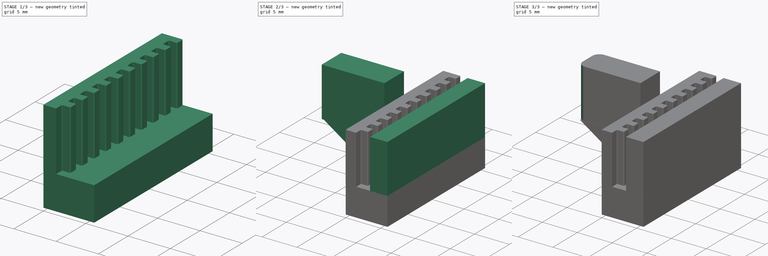
[diagram: build sequence overview — one tinted view per stage of 3, left to right]
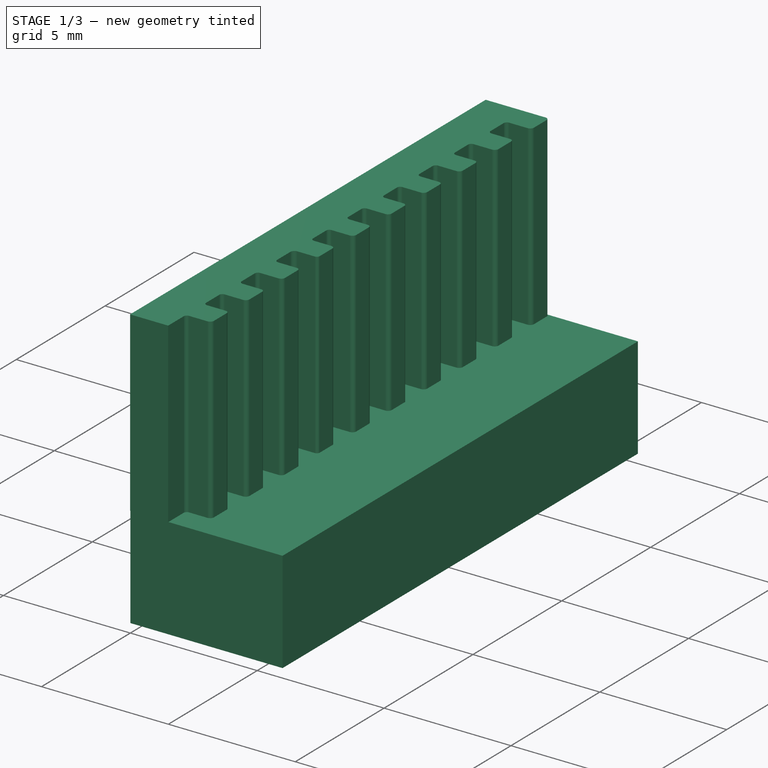
[diagram: stage 1 of 3 — iso view after this stage's code; geometry added in this stage tinted green]
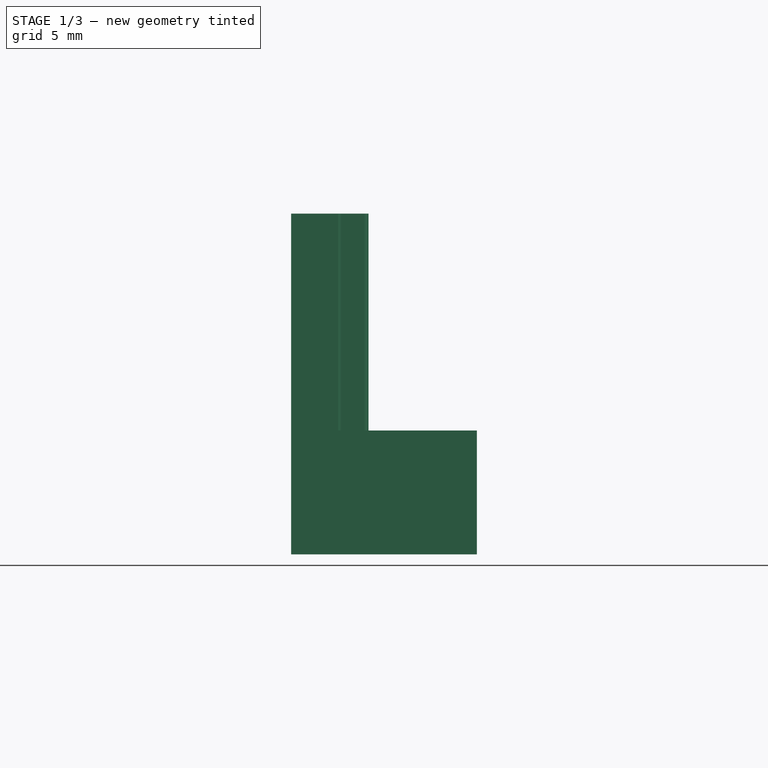
[diagram: stage 1 of 3 — front view after this stage's code; geometry added in this stage tinted green]
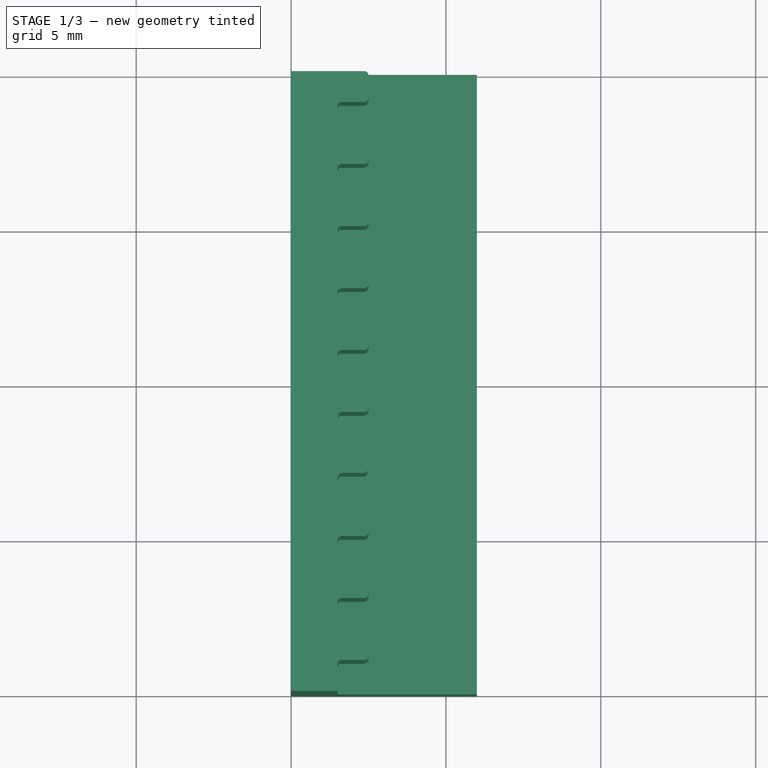
[diagram: stage 1 of 3 — top view after this stage's code; geometry added in this stage tinted green]
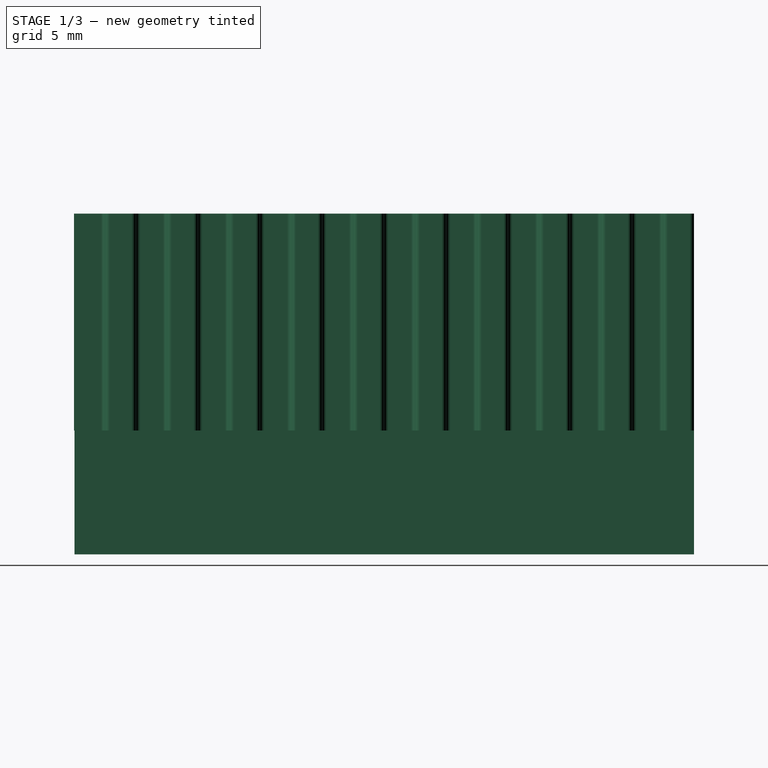
[diagram: stage 1 of 3 — right view after this stage's code; geometry added in this stage tinted green]
FCSTD DOCUMENT  (FreeCAD 0.21R33771 (Git))
Label: universal_stopper
License: All rights reserved
LicenseURL: http://en.wikipedia.org/wiki/All_rights_reserved
objects: Sketcher::SketchObject×5, PartDesign::Pad×5, PartDesign::Fillet×2, PartDesign::Body×1
note: 20 computed .brp shape members not serialized (recipe doc carries the construction recipe); baked Part::Feature solids carry a one-line shape summary decoded from their .brp

FEATURE [Sketcher::SketchObject] Sketch  label="base"
  FullyConstrained = true
  MapMode = 5
  Support = -> [XY_Plane]
  sketch-geometry (4):
    g0: LineSegment StartX=0 StartY=0 StartZ=0 EndX=6 EndY=0 EndZ=0
    g1: LineSegment StartX=6 StartY=0 StartZ=0 EndX=6 EndY=-20 EndZ=0
    g2: LineSegment StartX=6 StartY=-20 StartZ=0 EndX=0 EndY=-20 EndZ=0
    g3: LineSegment StartX=0 StartY=-20 StartZ=0 EndX=0 EndY=0 EndZ=0
  constraints (11):
    c: Coincident(g0,g1)
    c: Coincident(g1,g2)
    c: Coincident(g2,g3)
    c: Coincident(g3,g0)
    c: Horizontal(g0)
    c: Horizontal(g2)
    c: Vertical(g1)
    c: Vertical(g3)
    c: Coincident(g0,g-1)
    c: Distance(g3) = 20
    c: Distance(g0) = 6
FEATURE [PartDesign::Pad] Pad
  Direction = (0,0,1)
  Length = 4
  Length2 = 10
  Profile = -> Sketch
  ReferenceAxis = -> Sketch [N_Axis]
  Type = 0
FEATURE [Sketcher::SketchObject] Sketch001  label="zubia"
  FullyConstrained = false
  MapMode = 5
  Placement = pos=(0,0,4) rot=(0,0,1;0rad)
  Support = -> [Pad]
  sketch-geometry (91):
    g0: LineSegment StartX=0 StartY=0 StartZ=0 EndX=2.35958 EndY=-1.36913e-07 EndZ=0
    g1: LineSegment StartX=2.5 StartY=-0.14042 StartZ=0 EndX=2.5 EndY=-0.850163 EndZ=0
    g2: LineSegment StartX=2.35016 StartY=-0.999998 StartZ=0 EndX=1.62463 EndY=-0.999998 EndZ=0
    g3: LineSegment StartX=1.49999 StartY=-1.12463 StartZ=0 EndX=1.49999 EndY=-1.85853 EndZ=0
    g4: ArcOfCircle CenterX=2.35958 CenterY=-0.14042 CenterZ=0 NormalX=0 NormalY=0 NormalZ=1 AngleXU=0 Radius=0.14042 StartAngle=0 EndAngle=1.5708
    g5: ArcOfCircle CenterX=2.35016 CenterY=-0.850163 CenterZ=0 NormalX=0 NormalY=0 NormalZ=1 AngleXU=0 Radius=0.149835 StartAngle=4.71239 EndAngle=6.28319
    g6: ArcOfCircle CenterX=1.62463 CenterY=-1.12463 CenterZ=0 NormalX=0 NormalY=0 NormalZ=1 AngleXU=0 Radius=0.124633 StartAngle=1.5708 EndAngle=3.14159
    g7: ArcOfCircle CenterX=1.64149 CenterY=-1.85853 CenterZ=0 NormalX=0 NormalY=0 NormalZ=1 AngleXU=0 Radius=0.141491 StartAngle=3.14159 EndAngle=4.71239
    g8: LineSegment StartX=2.5 StartY=-2.1404 StartZ=0 EndX=2.5 EndY=-2.85165 EndZ=0
    g9: LineSegment StartX=2.35036 StartY=-3.00129 StartZ=0 EndX=1.62393 EndY=-3.00129 EndZ=0
    g10: LineSegment StartX=1.49851 StartY=-3.12672 StartZ=0 EndX=1.49851 EndY=-3.86339 EndZ=0
    g11: LineSegment StartX=1.64317 StartY=-4.00805 StartZ=0 EndX=2.36444 EndY=-4.00805 EndZ=0
    g12: ArcOfCircle CenterX=2.35963 CenterY=-2.1404 CenterZ=0 NormalX=0 NormalY=0 NormalZ=1 AngleXU=0 Radius=0.14037 StartAngle=0 EndAngle=1.57079
    g13: ArcOfCircle CenterX=2.35036 CenterY=-2.85165 CenterZ=0 NormalX=0 NormalY=0 NormalZ=1 AngleXU=0 Radius=0.149637 StartAngle=4.71239 EndAngle=6.28319
    g14: ArcOfCircle CenterX=1.62393 CenterY=-3.12672 CenterZ=0 NormalX=0 NormalY=0 NormalZ=1 AngleXU=0 Radius=0.125425 StartAngle=1.5708 EndAngle=3.14159
    g15: ArcOfCircle CenterX=1.64317 CenterY=-3.86339 CenterZ=0 NormalX=0 NormalY=0 NormalZ=1 AngleXU=0 Radius=0.14466 StartAngle=3.14159 EndAngle=4.71239
    g16: LineSegment StartX=0 StartY=0 StartZ=0 EndX=0.0001 EndY=-2.00169 EndZ=0
    g17: LineSegment StartX=2.50018 StartY=-4.14379 StartZ=0 EndX=2.50018 EndY=-4.85351 EndZ=0
    g18: LineSegment StartX=2.35038 StartY=-5.00331 StartZ=0 EndX=1.6247 EndY=-5.00331 EndZ=0
    g19: LineSegment StartX=1.49994 StartY=-5.12807 StartZ=0 EndX=1.49994 EndY=-5.86306 EndZ=0
    g20: LineSegment StartX=1.64194 StartY=-6.00506 StartZ=0 EndX=2.35989 EndY=-6.00506 EndZ=0
    g21: ArcOfCircle CenterX=2.36444 CenterY=-4.14379 CenterZ=0 NormalX=0 NormalY=0 NormalZ=1 AngleXU=0 Radius=0.135743 StartAngle=-1.8e-15 EndAngle=1.5708
    g22: ArcOfCircle CenterX=2.35038 CenterY=-4.85351 CenterZ=0 NormalX=0 NormalY=0 NormalZ=1 AngleXU=0 Radius=0.149804 StartAngle=4.71239 EndAngle=6.28319
    g23: ArcOfCircle CenterX=1.6247 CenterY=-5.12807 CenterZ=0 NormalX=0 NormalY=0 NormalZ=1 AngleXU=0 Radius=0.12476 StartAngle=1.5708 EndAngle=3.14159
    g24: ArcOfCircle CenterX=1.64194 CenterY=-5.86306 CenterZ=0 NormalX=0 NormalY=0 NormalZ=1 AngleXU=0 Radius=0.141999 StartAngle=3.14159 EndAngle=4.71239
    g25: LineSegment StartX=0.0001 StartY=-2.00169 StartZ=0 EndX=0.0002 EndY=-4.00338 EndZ=0
    g26: LineSegment StartX=2.50033 StartY=-6.14549 StartZ=0 EndX=2.50033 EndY=-6.85529 EndZ=0
    g27: LineSegment StartX=2.35043 StartY=-7.00518 StartZ=0 EndX=1.62517 EndY=-7.00518 EndZ=0
    g28: LineSegment StartX=1.50078 StartY=-7.12957 StartZ=0 EndX=1.50078 EndY=-7.86262 EndZ=0
    g29: LineSegment StartX=1.6413 StartY=-8.00314 StartZ=0 EndX=2.35632 EndY=-8.00314 EndZ=0
    g30: ArcOfCircle CenterX=2.3599 CenterY=-6.14549 CenterZ=0 NormalX=0 NormalY=0 NormalZ=1 AngleXU=0 Radius=0.140435 StartAngle=-1.8e-15 EndAngle=1.5708
    g31: ArcOfCircle CenterX=2.35043 CenterY=-6.85529 CenterZ=0 NormalX=0 NormalY=0 NormalZ=1 AngleXU=0 Radius=0.149896 StartAngle=4.71239 EndAngle=6.28319
    g32: ArcOfCircle CenterX=1.62517 CenterY=-7.12957 CenterZ=0 NormalX=0 NormalY=0 NormalZ=1 AngleXU=0 Radius=0.124389 StartAngle=1.5708 EndAngle=3.14159
    g33: ArcOfCircle CenterX=1.6413 CenterY=-7.86262 CenterZ=0 NormalX=0 NormalY=0 NormalZ=1 AngleXU=0 Radius=0.140515 StartAngle=3.14159 EndAngle=4.71239
    g34: LineSegment StartX=0.0002 StartY=-4.00338 StartZ=0 EndX=0.0003 EndY=-6.00506 EndZ=0
    g35: LineSegment StartX=2.50035 StartY=-8.14716 StartZ=0 EndX=2.50035 EndY=-8.85681 EndZ=0
    g36: LineSegment StartX=2.35062 StartY=-9.00654 StartZ=0 EndX=1.6246 EndY=-9.00654 EndZ=0
    g37: LineSegment StartX=1.49954 StartY=-9.1316 StartZ=0 EndX=1.49954 EndY=-9.86525 EndZ=0
    g38: LineSegment StartX=1.64274 StartY=-10.0085 StartZ=0 EndX=2.36005 EndY=-10.0085 EndZ=0
    g39: ArcOfCircle CenterX=2.35632 CenterY=-8.14716 CenterZ=0 NormalX=0 NormalY=0 NormalZ=1 AngleXU=0 Radius=0.144022 StartAngle=4.7e-15 EndAngle=1.57079
    g40: ArcOfCircle CenterX=2.35062 CenterY=-8.85681 CenterZ=0 NormalX=0 NormalY=0 NormalZ=1 AngleXU=0 Radius=0.149728 StartAngle=4.71239 EndAngle=6.28319
    g41: ArcOfCircle CenterX=1.6246 CenterY=-9.1316 CenterZ=0 NormalX=0 NormalY=0 NormalZ=1 AngleXU=0 Radius=0.125061 StartAngle=1.5708 EndAngle=3.14159
    g42: ArcOfCircle CenterX=1.64274 CenterY=-9.86525 CenterZ=0 NormalX=0 NormalY=0 NormalZ=1 AngleXU=0 Radius=0.143202 StartAngle=3.14159 EndAngle=4.71239
    g43: LineSegment StartX=0.0003 StartY=-6.00506 StartZ=0 EndX=0.0004 EndY=-8.00675 EndZ=0
    g44: LineSegment StartX=2.50044 StartY=-10.1488 StartZ=0 EndX=2.50044 EndY=-10.8585 EndZ=0
    g45: LineSegment StartX=2.35072 StartY=-11.0082 StartZ=0 EndX=1.63435 EndY=-11.0082 EndZ=0
    g46: LineSegment StartX=1.50927 StartY=-11.1333 StartZ=0 EndX=1.50927 EndY=-11.8685 EndZ=0
    g47: LineSegment StartX=1.64287 StartY=-12.0021 StartZ=0 EndX=2.31498 EndY=-12.0021 EndZ=0
    g48: ArcOfCircle CenterX=2.36005 CenterY=-10.1488 CenterZ=0 NormalX=0 NormalY=0 NormalZ=1 AngleXU=0 Radius=0.140392 StartAngle=5.1e-15 EndAngle=1.57079
    g49: ArcOfCircle CenterX=2.35072 CenterY=-10.8585 CenterZ=0 NormalX=0 NormalY=0 NormalZ=1 AngleXU=0 Radius=0.149725 StartAngle=4.71239 EndAngle=6.28319
    g50: ArcOfCircle CenterX=1.63435 CenterY=-11.1333 CenterZ=0 NormalX=0 NormalY=0 NormalZ=1 AngleXU=0 Radius=0.125075 StartAngle=1.5708 EndAngle=3.14159
    g51: ArcOfCircle CenterX=1.64287 CenterY=-11.8685 CenterZ=0 NormalX=0 NormalY=0 NormalZ=1 AngleXU=0 Radius=0.133595 StartAngle=3.14159 EndAngle=4.71239
    g52: LineSegment StartX=0.0004 StartY=-8.00675 StartZ=0 EndX=0.0005 EndY=-10.0084 EndZ=0
    g53: LineSegment StartX=2.46352 StartY=-12.1505 StartZ=0 EndX=2.46352 EndY=-12.8601 EndZ=0
    g54: LineSegment StartX=2.35085 StartY=-12.9728 StartZ=0 EndX=1.66152 EndY=-12.9728 EndZ=0
    g55: LineSegment StartX=1.49919 StartY=-13.1351 StartZ=0 EndX=1.49919 EndY=-13.8715 EndZ=0
    g56: LineSegment StartX=1.64349 StartY=-14.0158 StartZ=0 EndX=2.36422 EndY=-14.0158 EndZ=0
    g57: ArcOfCircle CenterX=2.31511 CenterY=-12.1505 CenterZ=0 NormalX=0 NormalY=0 NormalZ=1 AngleXU=0 Radius=0.148411 StartAngle=4.9e-15 EndAngle=1.57165
    g58: ArcOfCircle CenterX=2.35085 CenterY=-12.8601 CenterZ=0 NormalX=0 NormalY=0 NormalZ=1 AngleXU=0 Radius=0.112668 StartAngle=4.71239 EndAngle=6.28319
    g59: ArcOfCircle CenterX=1.66152 CenterY=-13.1351 CenterZ=0 NormalX=0 NormalY=0 NormalZ=1 AngleXU=0 Radius=0.162328 StartAngle=1.5708 EndAngle=3.14159
    g60: ArcOfCircle CenterX=1.64349 CenterY=-13.8715 CenterZ=0 NormalX=0 NormalY=0 NormalZ=1 AngleXU=0 Radius=0.144301 StartAngle=3.14159 EndAngle=4.71239
    g61: LineSegment StartX=0.0005 StartY=-10.0084 StartZ=0 EndX=0.0006 EndY=-12.0101 EndZ=0
    g62: LineSegment StartX=2.50067 StartY=-14.1522 StartZ=0 EndX=2.50067 EndY=-14.8619 EndZ=0
    g63: LineSegment StartX=2.35089 StartY=-15.0117 StartZ=0 EndX=1.62512 EndY=-15.0117 EndZ=0
    g64: LineSegment StartX=1.50027 StartY=-15.1366 StartZ=0 EndX=1.50027 EndY=-15.8712 EndZ=0
    g65: LineSegment StartX=1.64259 StartY=-16.0135 StartZ=0 EndX=2.36081 EndY=-16.0135 EndZ=0
    g66: ArcOfCircle CenterX=2.36422 CenterY=-14.1522 CenterZ=0 NormalX=0 NormalY=0 NormalZ=1 AngleXU=0 Radius=0.136457 StartAngle=5.5e-15 EndAngle=1.57079
    g67: ArcOfCircle CenterX=2.35089 CenterY=-14.8619 CenterZ=0 NormalX=0 NormalY=0 NormalZ=1 AngleXU=0 Radius=0.149783 StartAngle=4.71239 EndAngle=6.28319
    g68: ArcOfCircle CenterX=1.62512 CenterY=-15.1366 CenterZ=0 NormalX=0 NormalY=0 NormalZ=1 AngleXU=0 Radius=0.124844 StartAngle=1.5708 EndAngle=3.14159
    g69: ArcOfCircle CenterX=1.64259 CenterY=-15.8712 CenterZ=0 NormalX=0 NormalY=0 NormalZ=1 AngleXU=0 Radius=0.142321 StartAngle=3.14159 EndAngle=4.71239
    g70: LineSegment StartX=0.0006 StartY=-12.0101 StartZ=0 EndX=0.0007 EndY=-14.0118 EndZ=0
    g71: LineSegment StartX=2.50122 StartY=-16.1539 StartZ=0 EndX=2.50122 EndY=-16.8636 EndZ=0
    g72: LineSegment StartX=2.351 StartY=-17.0138 StartZ=0 EndX=1.62516 EndY=-17.0138 EndZ=0
    g73: LineSegment StartX=1.50072 StartY=-17.1383 StartZ=0 EndX=1.50072 EndY=-17.8731 EndZ=0
    g74: LineSegment StartX=1.64281 StartY=-18.0152 StartZ=0 EndX=2.36048 EndY=-18.0152 EndZ=0
    g75: ArcOfCircle CenterX=2.36081 CenterY=-16.1539 CenterZ=0 NormalX=0 NormalY=0 NormalZ=1 AngleXU=0 Radius=0.140403 StartAngle=-7.1e-15 EndAngle=1.57079
    g76: ArcOfCircle CenterX=2.351 CenterY=-16.8636 CenterZ=0 NormalX=0 NormalY=0 NormalZ=1 AngleXU=0 Radius=0.150219 StartAngle=4.71239 EndAngle=6.28319
    g77: ArcOfCircle CenterX=1.62516 CenterY=-17.1383 CenterZ=0 NormalX=0 NormalY=0 NormalZ=1 AngleXU=0 Radius=0.124447 StartAngle=1.5708 EndAngle=3.14159
    g78: ArcOfCircle CenterX=1.64281 CenterY=-17.8731 CenterZ=0 NormalX=0 NormalY=0 NormalZ=1 AngleXU=0 Radius=0.142098 StartAngle=3.14159 EndAngle=4.71239
    g79: LineSegment StartX=0.0007 StartY=-14.0118 StartZ=0 EndX=0.0008 EndY=-16.0135 EndZ=0
    g80: LineSegment StartX=2.5009 StartY=-18.1556 StartZ=0 EndX=2.5009 EndY=-18.8654 EndZ=0
    g81: LineSegment StartX=2.35106 StartY=-19.0152 StartZ=0 EndX=1.62553 EndY=-19.0152 EndZ=0
    g82: LineSegment StartX=1.5009 StartY=-19.1398 StartZ=0 EndX=1.5009 EndY=-20.0134 EndZ=0
    g83: ArcOfCircle CenterX=2.36048 CenterY=-18.1556 CenterZ=0 NormalX=0 NormalY=0 NormalZ=1 AngleXU=0 Radius=0.14042 StartAngle=-7.1e-15 EndAngle=1.5708
    g84: ArcOfCircle CenterX=2.35106 CenterY=-18.8654 CenterZ=0 NormalX=0 NormalY=0 NormalZ=1 AngleXU=0 Radius=0.149836 StartAngle=4.71239 EndAngle=6.28319
    g85: ArcOfCircle CenterX=1.62553 CenterY=-19.1398 CenterZ=0 NormalX=0 NormalY=0 NormalZ=1 AngleXU=0 Radius=0.12463 StartAngle=1.5708 EndAngle=3.14159
    g86: LineSegment StartX=0.0008 StartY=-16.0135 StartZ=0 EndX=0.0009 EndY=-18.0152 EndZ=0
    g87: LineSegment StartX=-0.0001 StartY=-18.0117 StartZ=0 EndX=0 EndY=-20.0134 EndZ=0
    g88: LineSegment StartX=1.64149 StartY=-2.00002 StartZ=0 EndX=2.35963 EndY=-2.00002 EndZ=0
    g89: LineSegment StartX=0 StartY=-20.0134 StartZ=0 EndX=1.5009 EndY=-20.0134 EndZ=0
    g90: LineSegment StartX=0 StartY=-20.0134 StartZ=0 EndX=0 EndY=0 EndZ=0
  constraints (145):
    c: Coincident(g0,g-1)
    c: Vertical(g1)
    c: Horizontal(g2)
    c: Vertical(g3)
    c: Tangent(g0,g4) = 1.5708
    c: Tangent(g1,g4) = 1.5708
    c: Tangent(g1,g5) = 1.5708
    c: Tangent(g2,g5) = 1.5708
    c: Tangent(g3,g6) = -1.5708
    c: Tangent(g2,g6) = -1.5708
    c: Tangent(g3,g7) = -1.5708
    c: Vertical(g8)
    c: Horizontal(g9)
    c: Vertical(g10)
    c: Horizontal(g11)
    c: Tangent(g8,g12) = 1.5708
    c: Tangent(g8,g13) = 1.5708
    c: Tangent(g9,g13) = 1.5708
    c: Tangent(g10,g14) = -1.5708
    c: Tangent(g9,g14) = -1.5708
    c: Tangent(g10,g15) = -1.5708
    c: Tangent(g11,g15) = -1.5708
    c: Coincident(g0,g16)
    c: Distance(g16) = 2.00169
    c: Angle(g16) = -1.57075
    c: Vertical(g17)
    c: Horizontal(g18)
    c: Vertical(g19)
    c: Horizontal(g20)
    c: Tangent(g17,g21) = 1.5708
    c: Tangent(g17,g22) = 1.5708
    c: Tangent(g18,g22) = 1.5708
    c: Tangent(g19,g23) = -1.5708
    c: Tangent(g18,g23) = -1.5708
    c: Tangent(g19,g24) = -1.5708
    c: Tangent(g20,g24) = -1.5708
    c: Equal(g16,g25)
    c: Parallel(g25,g16)
    c: Vertical(g26)
    c: Horizontal(g27)
    c: Vertical(g28)
    c: Horizontal(g29)
    c: Tangent(g26,g30) = 1.5708
    c: Tangent(g26,g31) = 1.5708
    c: Tangent(g27,g31) = 1.5708
    c: Tangent(g28,g32) = -1.5708
    c: Tangent(g27,g32) = -1.5708
    c: Tangent(g28,g33) = -1.5708
    c: Tangent(g29,g33) = -1.5708
    c: Equal(g16,g34)
    c: Parallel(g34,g16)
    c: Vertical(g35)
    c: Horizontal(g36)
    c: Vertical(g37)
    c: Horizontal(g38)
    c: Tangent(g35,g39) = 1.5708
    c: Tangent(g35,g40) = 1.5708
    c: Tangent(g36,g40) = 1.5708
    c: Tangent(g37,g41) = -1.5708
    c: Tangent(g36,g41) = -1.5708
    c: Tangent(g37,g42) = -1.5708
    c: Tangent(g38,g42) = -1.5708
    c: Equal(g16,g43)
    c: Parallel(g43,g16)
    c: Vertical(g44)
    c: Horizontal(g45)
    c: Vertical(g46)
    c: Horizontal(g47)
    c: Tangent(g44,g48) = 1.5708
    c: Tangent(g44,g49) = 1.5708
    c: Tangent(g45,g49) = 1.5708
    c: Tangent(g46,g50) = -1.5708
    c: Tangent(g45,g50) = -1.5708
    c: Tangent(g46,g51) = -1.5708
    c: Tangent(g47,g51) = -1.5708
    c: Equal(g16,g52)
    c: Parallel(g52,g16)
    c: Vertical(g53)
    c: Horizontal(g54)
    c: Vertical(g55)
    c: Horizontal(g56)
    c: Tangent(g53,g57) = 1.5708
    c: Tangent(g53,g58) = 1.5708
    c: Tangent(g54,g58) = 1.5708
    c: Tangent(g55,g59) = -1.5708
    c: Tangent(g54,g59) = -1.5708
    c: Tangent(g55,g60) = -1.5708
    c: Tangent(g56,g60) = -1.5708
    c: Equal(g16,g61)
    c: Parallel(g61,g16)
    c: Vertical(g62)
    c: Horizontal(g63)
    c: Vertical(g64)
    c: Horizontal(g65)
    c: Tangent(g62,g66) = 1.5708
    c: Tangent(g62,g67) = 1.5708
    c: Tangent(g63,g67) = 1.5708
    c: Tangent(g64,g68) = -1.5708
    c: Tangent(g63,g68) = -1.5708
    c: Tangent(g64,g69) = -1.5708
    c: Tangent(g65,g69) = -1.5708
    c: Equal(g16,g70)
    c: Parallel(g70,g16)
    c: Vertical(g71)
    c: Horizontal(g72)
    c: Vertical(g73)
    c: Horizontal(g74)
    c: Tangent(g71,g75) = 1.5708
    c: Tangent(g71,g76) = 1.5708
    c: Tangent(g72,g76) = 1.5708
    c: Tangent(g73,g77) = -1.5708
    c: Tangent(g72,g77) = -1.5708
    c: Tangent(g73,g78) = -1.5708
    c: Tangent(g74,g78) = -1.5708
    c: Equal(g16,g79)
    c: Parallel(g79,g16)
    c: Vertical(g80)
    c: Horizontal(g81)
    c: Vertical(g82)
    c: Tangent(g80,g83) = 1.5708
    c: Tangent(g80,g84) = 1.5708
    c: Tangent(g81,g84) = 1.5708
    c: Tangent(g82,g85) = -1.5708
    c: Tangent(g81,g85) = -1.5708
    c: Equal(g16,g86)
    c: Parallel(g86,g16)
    c: Equal(g16,g87)
    c: Parallel(g87,g16)
    c: Coincident(g88,g7)
    c: Coincident(g88,g12)
    c: Horizontal(g88)
    c: Coincident(g21,g11)
    c: Coincident(g30,g20)
    c: Coincident(g39,g29)
    c: Coincident(g48,g38)
    c: Coincident(g57,g47)
    c: Coincident(g66,g56)
    c: Coincident(g75,g65)
    c: Coincident(g83,g74)
    c: Coincident(g89,g87)
    c: Horizontal(g89)
    c: Coincident(g89,g82)
    c: Coincident(g90,g89)
    c: Coincident(g90,g0)
    c: Vertical(g90)
FEATURE [PartDesign::Pad] Pad001  label="zubia_push"
  BaseFeature = -> Pad
  Direction = (0,0,1)
  Length = 7
  Length2 = 10
  Profile = -> Sketch001
  ReferenceAxis = -> Sketch001 [N_Axis]
  Type = 0
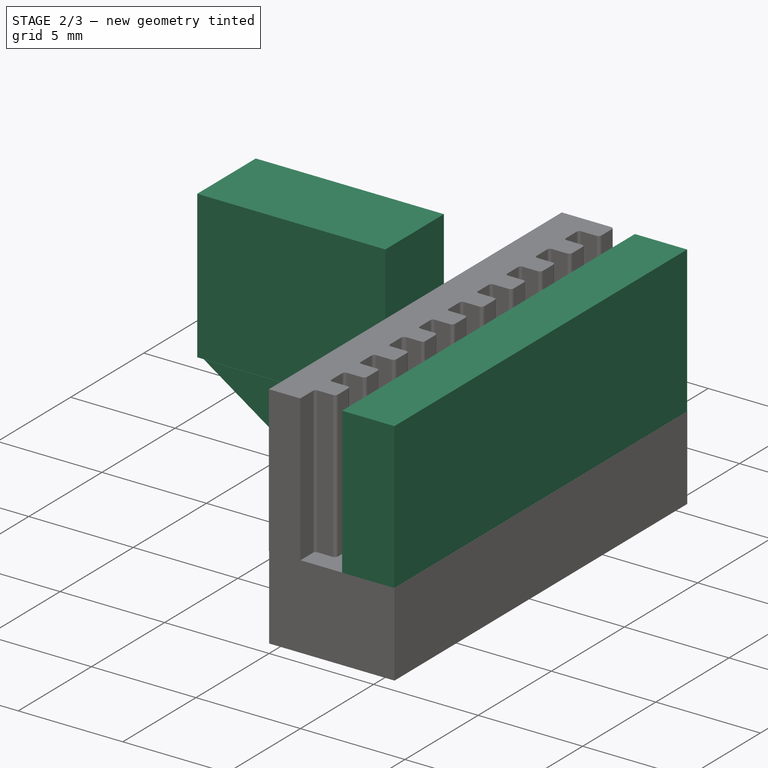
[diagram: stage 2 of 3 — iso view after this stage's code; geometry added in this stage tinted green]
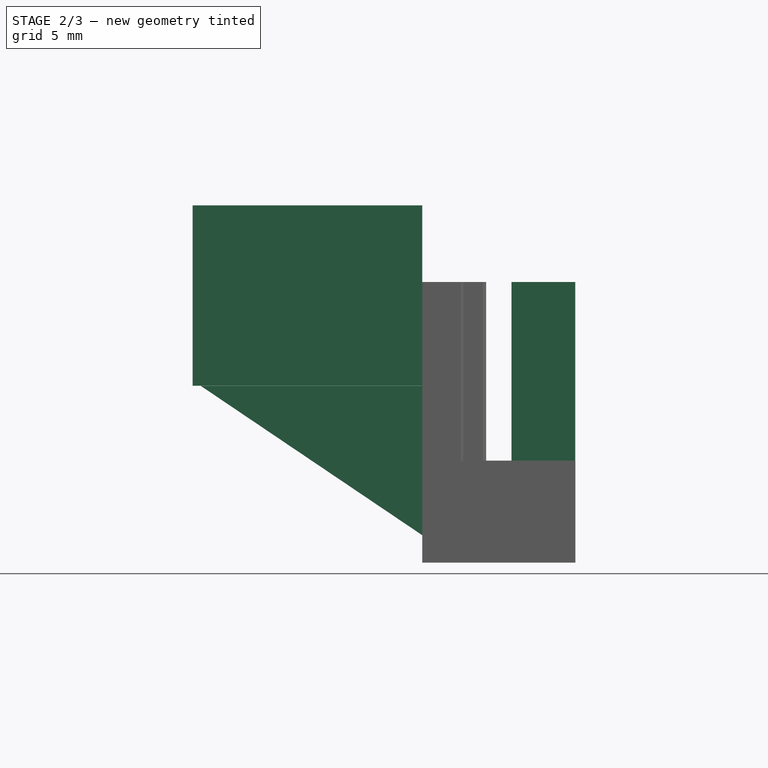
[diagram: stage 2 of 3 — front view after this stage's code; geometry added in this stage tinted green]
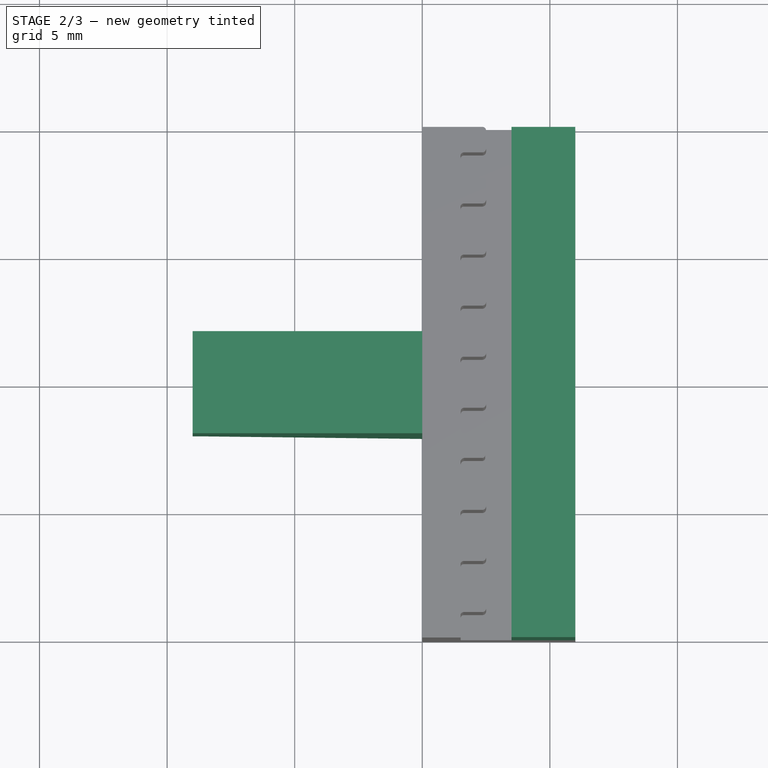
[diagram: stage 2 of 3 — top view after this stage's code; geometry added in this stage tinted green]
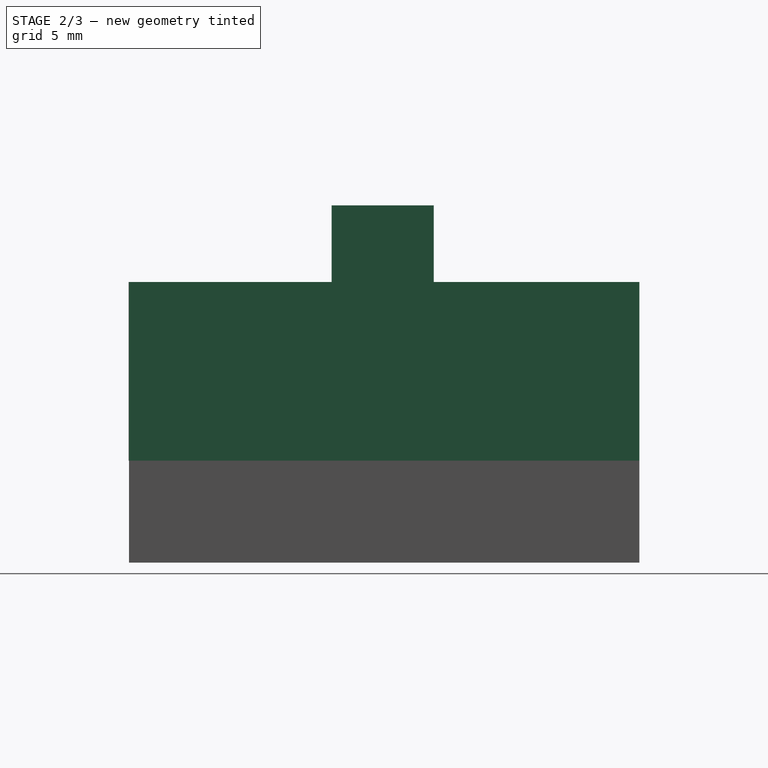
[diagram: stage 2 of 3 — right view after this stage's code; geometry added in this stage tinted green]
FEATURE [Sketcher::SketchObject] Sketch002  label="peregorodka"
  FullyConstrained = false
  MapMode = 5
  Placement = pos=(0,0,4) rot=(0,0,1;0rad)
  Support = -> [Pad001]
  sketch-geometry (4):
    g0: LineSegment StartX=5.99459 StartY=0 StartZ=0 EndX=3.49459 EndY=0 EndZ=0
    g1: LineSegment StartX=3.49459 StartY=0 StartZ=0 EndX=3.49459 EndY=-20 EndZ=0
    g2: LineSegment StartX=3.49459 StartY=-20 StartZ=0 EndX=5.99459 EndY=-20 EndZ=0
    g3: LineSegment StartX=5.99459 StartY=-20 StartZ=0 EndX=5.99459 EndY=0 EndZ=0
  constraints (11):
    c: Coincident(g0,g1)
    c: Coincident(g1,g2)
    c: Coincident(g2,g3)
    c: Coincident(g3,g0)
    c: Horizontal(g0)
    c: Horizontal(g2)
    c: Vertical(g1)
    c: Vertical(g3)
    c: PointOnObject(g0,g-1)
    c: Distance(g0) = 2.5
    c: Distance(g1) = 20
FEATURE [PartDesign::Pad] Pad002
  BaseFeature = -> Pad001
  Direction = (0,0,1)
  Length = 7
  Length2 = 10
  Profile = -> Sketch002
  ReferenceAxis = -> Sketch002 [N_Axis]
  Type = 0
FEATURE [Sketcher::SketchObject] Sketch003  label="pipe"
  FullyConstrained = false
  MapMode = 5
  Placement = pos=(0,0,0) rot=(0.57735,-0.57735,-0.57735;2.0944rad)
  Support = -> [Pad002]
  sketch-geometry (4):
    g0: LineSegment StartX=8.05724 StartY=14.0032 StartZ=0 EndX=12.0572 EndY=14.0032 EndZ=0
    g1: LineSegment StartX=12.0572 StartY=14.0032 StartZ=0 EndX=12.0572 EndY=6.93519 EndZ=0
    g2: LineSegment StartX=12.0572 StartY=6.93519 StartZ=0 EndX=8.05724 EndY=6.93519 EndZ=0
    g3: LineSegment StartX=8.05724 StartY=6.93519 StartZ=0 EndX=8.05724 EndY=14.0032 EndZ=0
  constraints (9):
    c: Coincident(g0,g1)
    c: Coincident(g1,g2)
    c: Coincident(g2,g3)
    c: Coincident(g3,g0)
    c: Horizontal(g0)
    c: Horizontal(g2)
    c: Vertical(g1)
    c: Vertical(g3)
    c: Distance(g2) = 4
FEATURE [PartDesign::Pad] Pad003
  BaseFeature = -> Pad002
  Direction = (-1,0,0)
  Length = 9
  Length2 = 10
  Profile = -> Sketch003
  ReferenceAxis = -> Sketch003 [N_Axis]
  Type = 0
FEATURE [Sketcher::SketchObject] Sketch004  label="podporka"
  FullyConstrained = false
  MapMode = 5
  Placement = pos=(0,-8.05724,0) rot=(0,0.707107,0.707107;3.14159rad)
  Support = -> [Pad003]
  sketch-geometry (3):
    g0: LineSegment StartX=8.67976 StartY=6.92718 StartZ=0 EndX=0 EndY=1.07531 EndZ=0
    g1: LineSegment StartX=0 StartY=1.07531 StartZ=0 EndX=0 EndY=6.92718 EndZ=0
    g2: LineSegment StartX=0 StartY=6.92718 StartZ=0 EndX=8.67976 EndY=6.92718 EndZ=0
  constraints (6):
    c: PointOnObject(g0,g-2)
    c: Coincident(g1,g0)
    c: Vertical(g1)
    c: Coincident(g2,g1)
    c: Coincident(g2,g0)
    c: Horizontal(g2)
FEATURE [PartDesign::Pad] Pad004
  BaseFeature = -> Pad003
  Direction = (0,1,-2e-16)
  Length = 4
  Length2 = 10
  Profile = -> Sketch004
  ReferenceAxis = -> Sketch004 [N_Axis]
  Reversed = true
  Type = 0
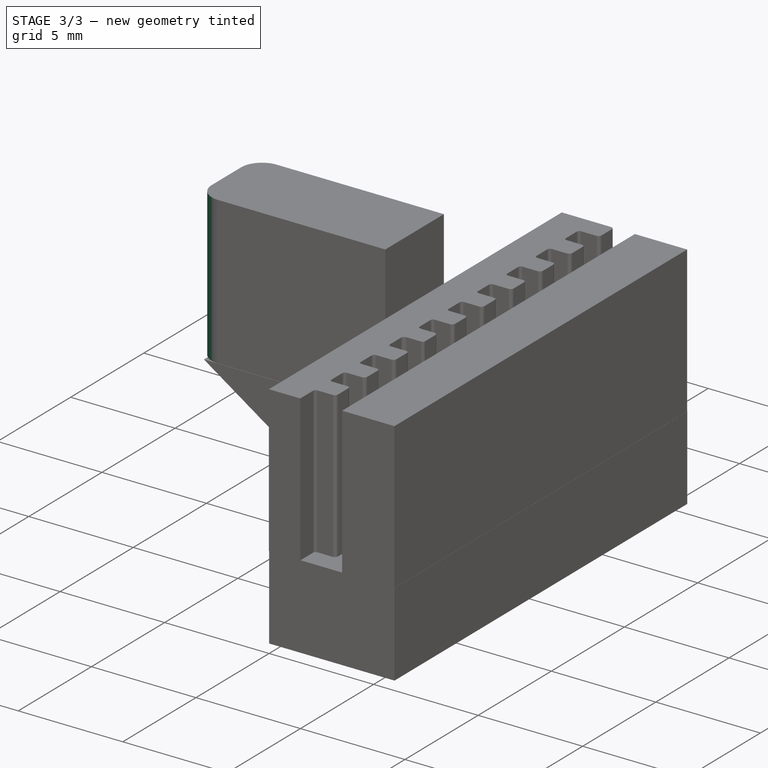
[diagram: stage 3 of 3 — iso view after this stage's code; geometry added in this stage tinted green]
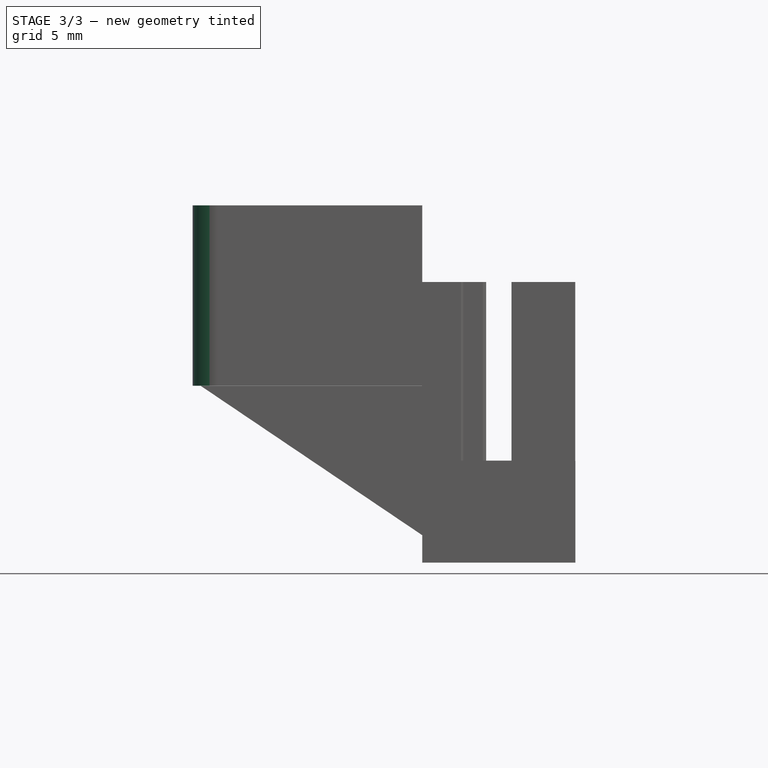
[diagram: stage 3 of 3 — front view after this stage's code; geometry added in this stage tinted green]
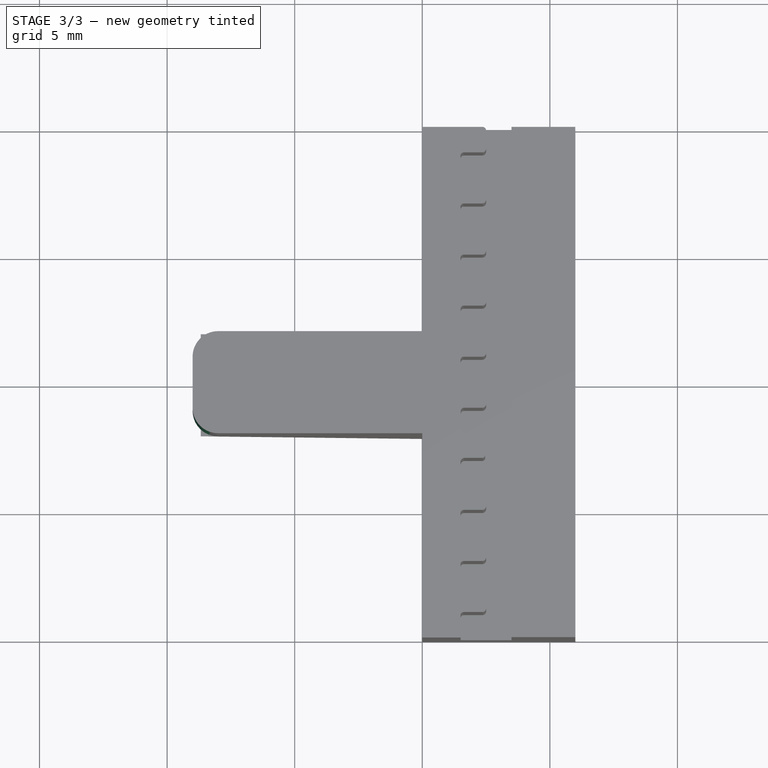
[diagram: stage 3 of 3 — top view after this stage's code; geometry added in this stage tinted green]
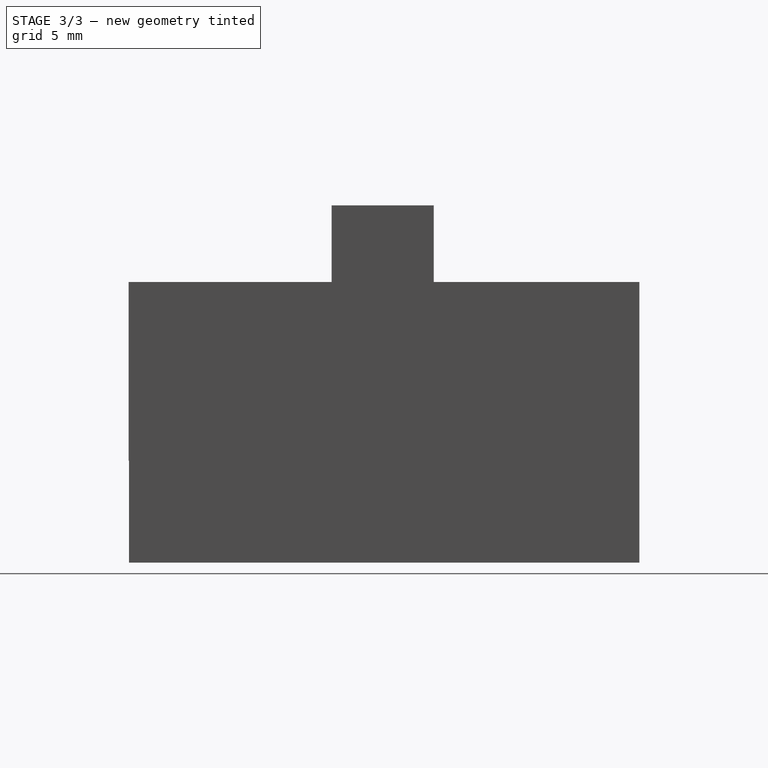
[diagram: stage 3 of 3 — right view after this stage's code; geometry added in this stage tinted green]
FEATURE [PartDesign::Fillet] Fillet
  Base = -> Pad004 [Edge292]
  BaseFeature = -> Pad004
  Radius = 1
  SupportTransform = false
  UseAllEdges = false
FEATURE [PartDesign::Fillet] Fillet001
  Base = -> Fillet [Edge28]
  BaseFeature = -> Fillet
  Radius = 1
  SupportTransform = false
  UseAllEdges = false
FEATURE [PartDesign::Body] Body  label="zubia_body"
  Group = -> [Sketch,Pad,Sketch001,Pad001,Sketch002,Pad002,Sketch003,Pad003,Sketch004,Pad004,Fillet,Fillet001]
  Origin = -> Origin
  Tip = -> Fillet001
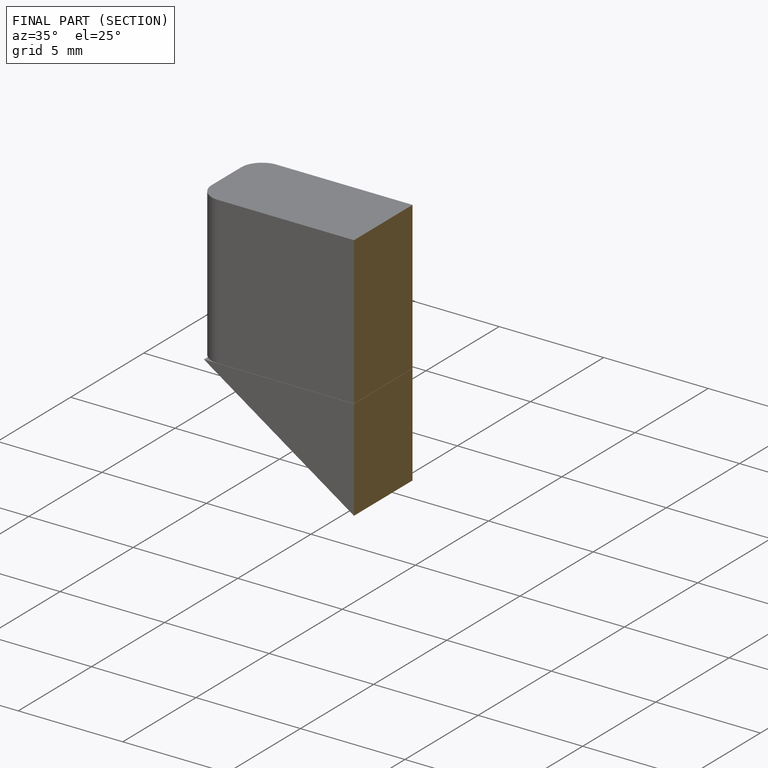
[diagram: finished part — half-section view (interior)]
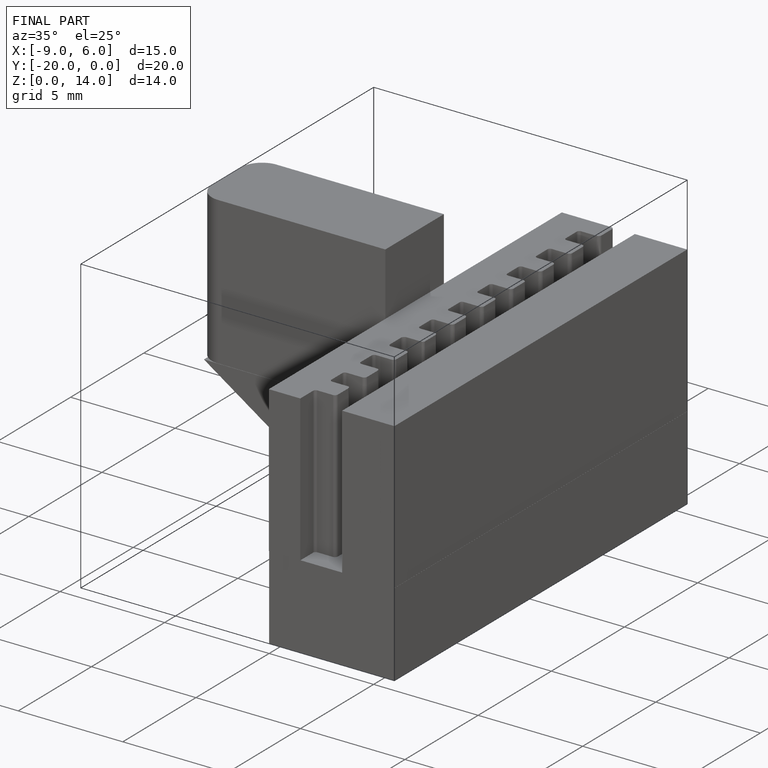
[diagram: finished part — iso view with bounding-box wireframe]
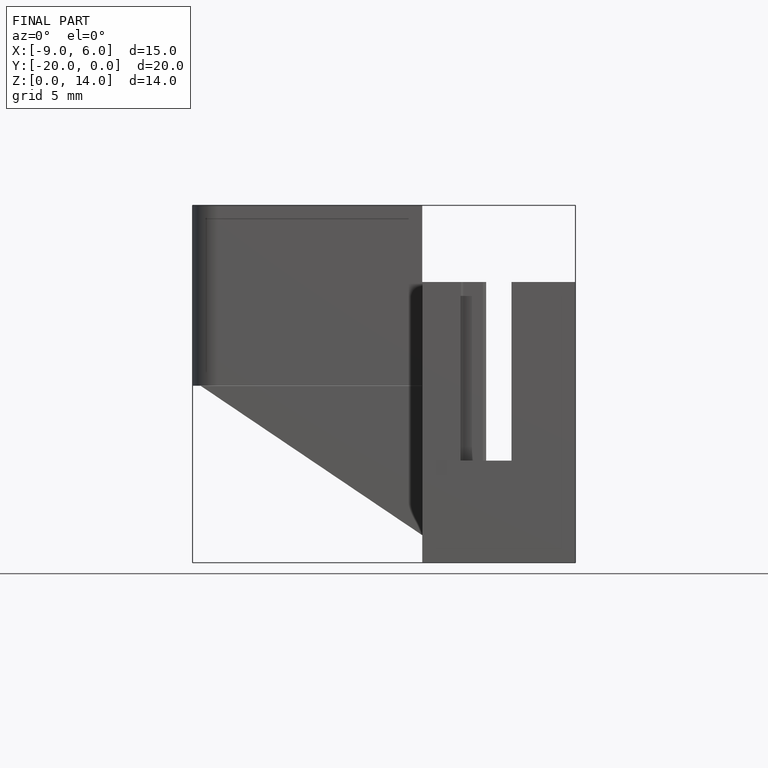
[diagram: finished part — front view with bounding-box wireframe]
